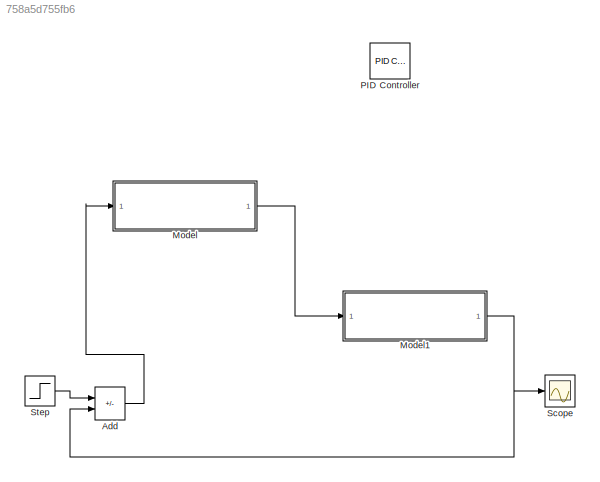
MODEL slx_758a5d755fb6
KIND model
CONFIG AbsTol = auto
CONFIG EnableMultiTasking = off
CONFIG FixedStep = auto
CONFIG MaxStep = 0.00001
CONFIG MinStep = auto
CONFIG PostLoadFcn = J=3.2284e-6;\nb=3.5077e-6;\nKe=0.0274;\nKt=0.0274;\nR=4;\nL=2.75e-6;\nKp=85.8258;\nKi=1318.7301;\nKd=1.2411;\nN=300994.0142;
CONFIG RelTol = 1e-3
CONFIG SampleTimeConstraint = Unconstrained
CONFIG SolverName = VariableStepAuto
CONFIG StartTime = 0.0
CONFIG StopTime = 10.0
BLOCK [Sum] Add
  IconShape = rectangular
  Inputs = +-
  Ports = [2, 1]
BLOCK [ModelReference] Model
  ModelNameDialog = problem_controller.slx
  ModelReferenceVersion = 1.6
  Ports = [1, 1]
BLOCK [ModelReference] Model1
  ModelNameDialog = plant_model.slx
  ModelReferenceVersion = 8.1
  Ports = [1, 1]
BLOCK [Reference] PID Controller  REF=pid_lib/PID Controller
  Ports = [1, 1]
  SourceBlock = pid_lib/PID Controller
  SourceProductBaseCode = SL
  SourceType = PID 1dof
BLOCK [Scope] Scope
  Floating = off
  NumInputPorts = 1
  Ports = [1]
  ScopeSpecificationString = Simulink.scopes.TimeScopeBlockCfg('CurrentConfiguration', extmgr.ConfigurationSet(extmgr.Configuration('Core','General UI',true),extmgr.Configuration('Core','Source UI',true),extmgr.Configuration('Sources','WiredSimulink',true),extmgr.Configuration('Visuals','Time Domain',true,'SerializedDisplays',{struct('MinYLimReal','-0.14112','MaxYLimReal','1.27008','YLabelReal','','MinYLimMag','0.00000','MaxY...<+1425ch>
BLOCK [Step] Step
  SampleTime = 0
  Time = 0
LINE Add:1 -> Model:1
NET Model1:1 -> Add:2, Scope:1
LINE Model:1 -> Model1:1
LINE Step:1 -> Add:1
note: NET lines group one-source signal fan-out (src -> all destinations, sorted); 1:1 wires keep LINE
